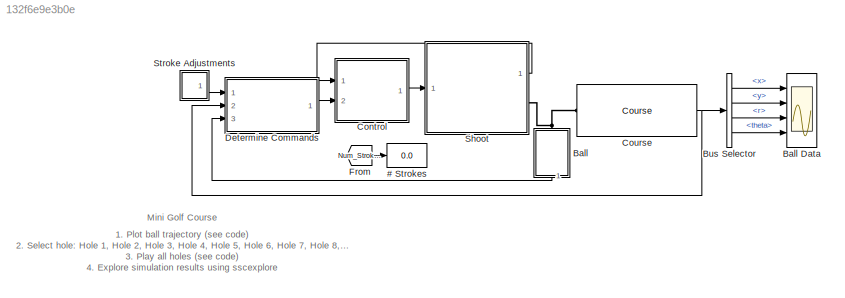
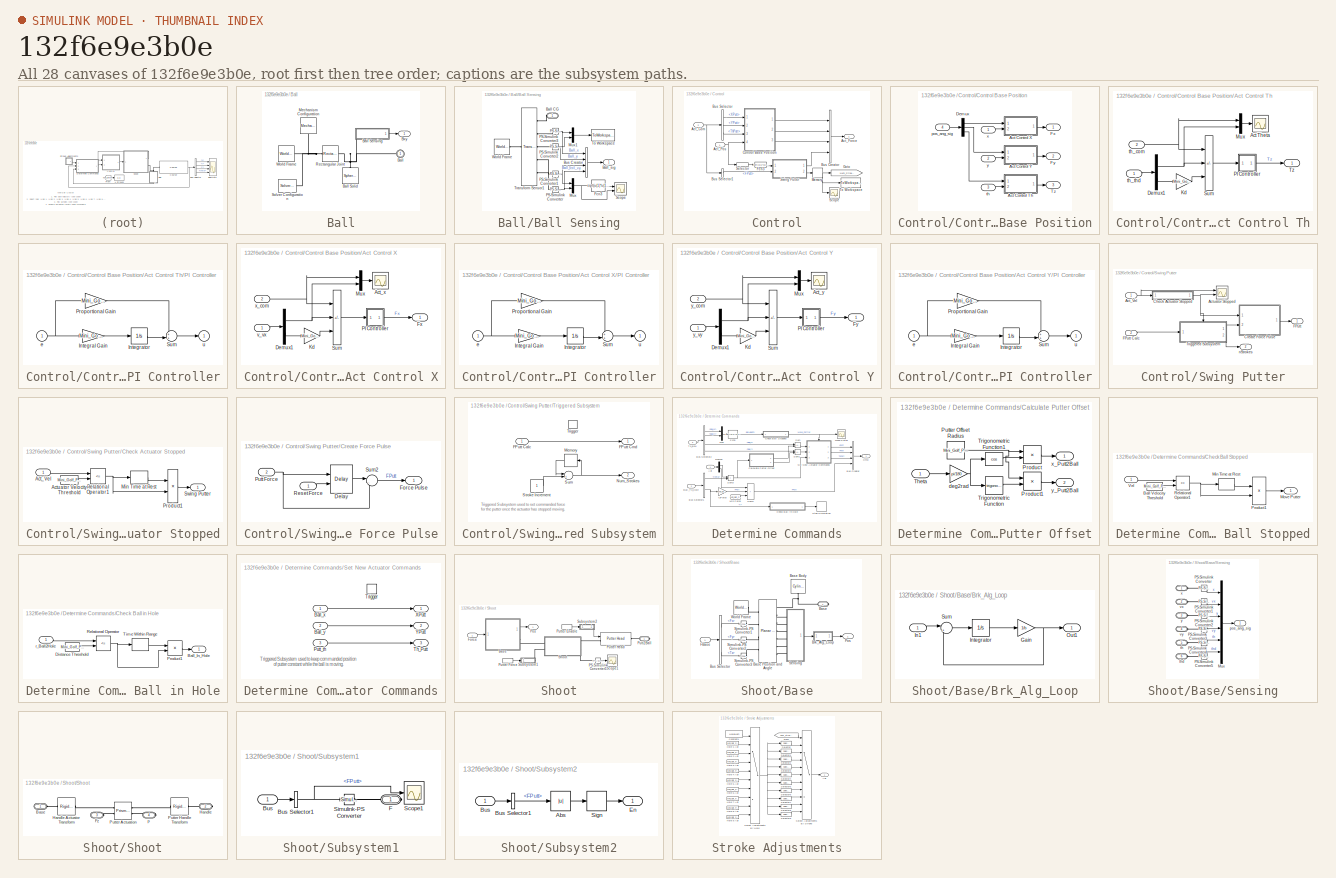
[diagram: thumbnail index - all 28 canvases of the model, root first then tree order]
MODEL slx_132f6e9e3b0e
KIND model
CONFIG AbsTol = 1e-5
CONFIG EnableMultiTasking = on
CONFIG FixedStep = auto
CONFIG InitFcn = %% DO NOT CHANGE -- START %%\n\n% GET HOLE NUMBER \nHoleChoice = get_param([bdroot '/Course'],'ActiveVariant');\nHoleChoice = strrep(HoleChoice,' ','_');\nUndSc_ind = findstr(HoleChoice,'_');\nHoleNum = str2num(HoleChoice(UndSc_ind+1:end));\n\n% SET BALL INITIAL POSITION \nball_init_x = eval(['Mini_Golf_Param.' HoleChoice '.Ball_Init_x']);\nball_init_y = eval(['Mini_Golf_Param.' HoleChoice '.Ball_Init_y']);...<+29ch>
CONFIG MaxStep = 1e-2
CONFIG MinStep = auto
CONFIG PostLoadFcn = % TURN OFF ERROR EXTERNAL FORCE --> WORLD\nset_param(bdroot,'SimMechanicsRigidlyBoundBlock','none')\nset_param(bdroot,'IgnoredZcDiagnostic','none')
CONFIG RelTol = 1e-4
CONFIG SampleTimeConstraint = Unconstrained
CONFIG SolverName = ode15s
CONFIG StartFcn = tic;
CONFIG StartTime = 0.0
CONFIG StopFcn = Elapsed_Sim_Time = toc;\ndisp(['Elapsed Sim Time = ' num2str(Elapsed_Sim_Time)]);\nPlot_Hole_Ball_Trajectory
CONFIG StopTime = 100
BLOCK [Display] # Strokes
  Decimation = 1
  Ports = [1]
BLOCK [SubSystem] Ball
  NameLocation = left
  Ports = [0, 1, 0, 0, 0, 1]
  RequestExecContextInheritance = off
BLOCK [Scope] Ball Data
  Floating = off
  NumInputPorts = 4
  Ports = [4]
  ScopeSpecificationString = Simulink.scopes.TimeScopeBlockCfg('CurrentConfiguration', extmgr.ConfigurationSet(extmgr.Configuration('Core','General UI',true,'FigureColor',[0.501960784313725 0.501960784313725 0.501960784313725]),extmgr.Configuration('Core','Source UI',true),extmgr.Configuration('Sources','WiredSimulink',true,'DataLoggingSaveFormat','StructureWithTime','DataLoggingDecimation','1','DataLoggingDecimateData',true)...<+6064ch>
BLOCK [PMIOPort] Ball/Ball
  NameLocation = top
  Side = Left
BLOCK [SubSystem] Ball/Ball Sensing
  NameLocation = top
  Ports = [0, 1, 0, 0, 0, 1]
  RequestExecContextInheritance = off
BLOCK [PMIOPort] Ball/Ball Sensing/Ball CG
  Side = Left
BLOCK [Outport] Ball/Ball Sensing/Ball_sig
  VectorParamsAs1DForOutWhenUnconnected = off
BLOCK [BusCreator] Ball/Ball Sensing/Bus Creator
  DisplayOption = bar
  InheritFromInputs = on
  Inputs = 4
  Ports = [4, 1]
BLOCK [Fcn] Ball/Ball Sensing/Fcn3
  Expr = sqrt(u(1)*u(1)+u(2)*u(2))
BLOCK [Mux] Ball/Ball Sensing/Mux
  DisplayOption = bar
  Inputs = 2
  Ports = [2, 1]
BLOCK [Mux] Ball/Ball Sensing/Mux1
  DisplayOption = bar
  Inputs = 2
  Ports = [2, 1]
BLOCK [Reference] Ball/Ball Sensing/PS-Simulink Converter  REF=nesl_utility/PS-Simulink
Converter
  Ports = [0, 1, 0, 0, 0, 1]
  SourceBlock = nesl_utility/PS-Simulink\nConverter
  SourceProductBaseCode = PW,SS
  SourceType = PS-Simulink\nConverter
BLOCK [Reference] Ball/Ball Sensing/PS-Simulink Converter1  REF=nesl_utility/PS-Simulink
Converter
  Ports = [0, 1, 0, 0, 0, 1]
  SourceBlock = nesl_utility/PS-Simulink\nConverter
  SourceProductBaseCode = PW,SS
  SourceType = PS-Simulink\nConverter
BLOCK [Reference] Ball/Ball Sensing/PS-Simulink Converter2  REF=nesl_utility/PS-Simulink
Converter
  Ports = [0, 1, 0, 0, 0, 1]
  SourceBlock = nesl_utility/PS-Simulink\nConverter
  SourceProductBaseCode = PW,SS
  SourceType = PS-Simulink\nConverter
BLOCK [Reference] Ball/Ball Sensing/PS-Simulink Converter3  REF=nesl_utility/PS-Simulink
Converter
  Ports = [0, 1, 0, 0, 0, 1]
  SourceBlock = nesl_utility/PS-Simulink\nConverter
  SourceProductBaseCode = PW,SS
  SourceType = PS-Simulink\nConverter
BLOCK [Scope] Ball/Ball Sensing/Scope
  Floating = off
  NumInputPorts = 2
  Ports = [2]
  ScopeSpecificationString = Simulink.scopes.TimeScopeBlockCfg('CurrentConfiguration', extmgr.ConfigurationSet(extmgr.Configuration('Core','General UI',true),extmgr.Configuration('Core','Source UI',true),extmgr.Configuration('Sources','WiredSimulink',true,'DataLoggingVariableName','ScopeData8','DataLoggingSaveFormat','StructureWithTime','DataLoggingDecimation','1','DataLoggingDecimateData',true),extmgr.Configuration('Visuals'...<+2322ch>
BLOCK [ToWorkspace] Ball/Ball Sensing/To Workspace
  MaxDataPoints = inf
  Ports = [1]
  SampleTime = -1
  SaveFormat = Structure
  VariableName = Ball_xy
BLOCK [Reference] Ball/Ball Sensing/Transform Sensor1  REF=sm_lib/Frames and
Transforms/Transform
Sensor
  Ports = [0, 0, 0, 0, 0, 1, 5]
  SourceBlock = sm_lib/Frames and\nTransforms/Transform\nSensor
  SourceProductBaseCode = MS
  SourceType = Transform\nSensor
BLOCK [Reference] Ball/Ball Sensing/World Frame  REF=sm_lib/Frames and
Transforms/World Frame
  Ports = [0, 0, 0, 0, 0, 0, 1]
  SourceBlock = sm_lib/Frames and\nTransforms/World Frame
  SourceProductBaseCode = MS
  SourceType = World Frame
BLOCK [Reference] Ball/Ball Solid  REF=sm_lib/Body Elements/Spherical Solid
  NameLocation = right
  Ports = [0, 0, 0, 0, 0, 0, 1]
  SourceBlock = sm_lib/Body Elements/Spherical Solid
  SourceProductBaseCode = MS
  SourceType = Spherical Solid
BLOCK [Outport] Ball/Bxy
  VectorParamsAs1DForOutWhenUnconnected = off
BLOCK [Reference] Ball/Mechanism Configuration  REF=sm_lib/Utilities/Mechanism
Configuration
  NameLocation = right
  Ports = [0, 0, 0, 0, 0, 0, 1]
  SourceBlock = sm_lib/Utilities/Mechanism\nConfiguration
  SourceProductBaseCode = MS
  SourceType = Mechanism\nConfiguration
BLOCK [Reference] Ball/Rectangular Joint  REF=sm_lib/Joints/Rectangular
Joint
  Ports = [0, 0, 0, 0, 0, 1, 1]
  SourceBlock = sm_lib/Joints/Rectangular\nJoint
  SourceProductBaseCode = MS
  SourceType = Rectangular\nJoint
BLOCK [Reference] Ball/Solver Configuration  REF=nesl_utility/Solver
Configuration
  Ports = [0, 0, 0, 0, 0, 0, 1]
  SourceBlock = nesl_utility/Solver\nConfiguration
  SourceProductBaseCode = PW,SS
  SourceType = Solver\nConfiguration
BLOCK [Reference] Ball/World Frame  REF=sm_lib/Frames and
Transforms/World Frame
  Ports = [0, 0, 0, 0, 0, 0, 1]
  SourceBlock = sm_lib/Frames and\nTransforms/World Frame
  SourceProductBaseCode = MS
  SourceType = World Frame
BLOCK [BusSelector] Bus Selector
  OutputSignals = x,y,r,theta
  Ports = [1, 4]
BLOCK [SubSystem] Control
  Ports = [2, 1]
  RequestExecContextInheritance = off
BLOCK [Inport] Control/Act_Com
  Port = 2
BLOCK [Outport] Control/Act_Force
  VectorParamsAs1DForOutWhenUnconnected = off
BLOCK [Inport] Control/Act_Pos
BLOCK [BusCreator] Control/Bus Creator
  DisplayOption = bar
  InheritFromInputs = on
  Inputs = 4
  Ports = [4, 1]
BLOCK [BusSelector] Control/Bus Selector
  OutputSignals = XPutt,YPutt,ThPutt
  Ports = [1, 3]
BLOCK [BusSelector] Control/Bus Selector1
  OutputSignals = FPutt
  Ports = [1, 1]
BLOCK [SubSystem] Control/Control Base Position
  Ports = [4, 3]
  RequestExecContextInheritance = off
BLOCK [SubSystem] Control/Control Base Position/Act Control Th
  Ports = [2, 1]
  RequestExecContextInheritance = off
BLOCK [Scope] Control/Control Base Position/Act Control Th/Act Theta
  Floating = off
  NumInputPorts = 1
  Ports = [1]
  ScopeSpecificationString = Simulink.scopes.TimeScopeBlockCfg('CurrentConfiguration', extmgr.ConfigurationSet(extmgr.Configuration('Core','General UI',true),extmgr.Configuration('Core','Source UI',true),extmgr.Configuration('Sources','WiredSimulink',true,'DataLoggingVariableName','ScopeData1','DataLoggingSaveFormat','StructureWithTime','DataLoggingDecimation','1','DataLoggingDecimateData',true),extmgr.Configuration('Visuals'...<+1619ch>
BLOCK [Demux] Control/Control Base Position/Act Control Th/Demux1
  Outputs = 2
  Ports = [1, 2]
BLOCK [Gain] Control/Control Base Position/Act Control Th/Kd
  Gain = Mini_Golf_Param.Actuator.Kd_th
BLOCK [Mux] Control/Control Base Position/Act Control Th/Mux
  DisplayOption = bar
  Inputs = 2
  Ports = [2, 1]
BLOCK [SubSystem] Control/Control Base Position/Act Control Th/PI Controller
  Ports = [1, 1]
  RequestExecContextInheritance = off
BLOCK [Gain] Control/Control Base Position/Act Control Th/PI Controller/Integral Gain
  Gain = Mini_Golf_Param.Actuator.Ki_th
  OutDataTypeStr = Inherit: Same as input
  ParamDataTypeStr = Inherit: Same as input
  SaturateOnIntegerOverflow = on
BLOCK [Integrator] Control/Control Base Position/Act Control Th/PI Controller/Integrator
  Ports = [1, 1]
BLOCK [Gain] Control/Control Base Position/Act Control Th/PI Controller/Proportional Gain
  Gain = Mini_Golf_Param.Actuator.Kp_th
  OutDataTypeStr = Inherit: Same as input
  ParamDataTypeStr = Inherit: Same as input
  SaturateOnIntegerOverflow = on
BLOCK [Sum] Control/Control Base Position/Act Control Th/PI Controller/Sum
  InputSameDT = on
  Inputs = ++|
  OutDataTypeStr = Inherit: Same as first input
  Ports = [2, 1]
  SaturateOnIntegerOverflow = on
BLOCK [Inport] Control/Control Base Position/Act Control Th/PI Controller/e
BLOCK [Outport] Control/Control Base Position/Act Control Th/PI Controller/u
  InitialOutput = 0
  VectorParamsAs1DForOutWhenUnconnected = off
BLOCK [Sum] Control/Control Base Position/Act Control Th/Sum
  IconShape = rectangular
  Inputs = +--
  Ports = [3, 1]
BLOCK [Outport] Control/Control Base Position/Act Control Th/Tz
  VectorParamsAs1DForOutWhenUnconnected = off
BLOCK [Inport] Control/Control Base Position/Act Control Th/th_com
  Port = 2
BLOCK [Inport] Control/Control Base Position/Act Control Th/th_thd
BLOCK [SubSystem] Control/Control Base Position/Act Control X
  Ports = [2, 1]
  RequestExecContextInheritance = off
BLOCK [Scope] Control/Control Base Position/Act Control X/Act_x
  Floating = off
  NumInputPorts = 1
  Ports = [1]
  ScopeSpecificationString = Simulink.scopes.TimeScopeBlockCfg('CurrentConfiguration', extmgr.ConfigurationSet(extmgr.Configuration('Core','General UI',true),extmgr.Configuration('Core','Source UI',true),extmgr.Configuration('Sources','WiredSimulink',true,'DataLoggingVariableName','ScopeData1','DataLoggingSaveFormat','StructureWithTime','DataLoggingDecimation','1','DataLoggingDecimateData',true),extmgr.Configuration('Visuals'...<+1658ch>
BLOCK [Demux] Control/Control Base Position/Act Control X/Demux1
  Outputs = 2
  Ports = [1, 2]
BLOCK [Outport] Control/Control Base Position/Act Control X/Fx
  VectorParamsAs1DForOutWhenUnconnected = off
BLOCK [Gain] Control/Control Base Position/Act Control X/Kd
  Gain = Mini_Golf_Param.Actuator.Kd_x
BLOCK [Mux] Control/Control Base Position/Act Control X/Mux
  DisplayOption = bar
  Inputs = 2
  Ports = [2, 1]
BLOCK [SubSystem] Control/Control Base Position/Act Control X/PI Controller
  Ports = [1, 1]
  RequestExecContextInheritance = off
BLOCK [Gain] Control/Control Base Position/Act Control X/PI Controller/Integral Gain
  Gain = Mini_Golf_Param.Actuator.Ki_x
  OutDataTypeStr = Inherit: Same as input
  ParamDataTypeStr = Inherit: Same as input
  SaturateOnIntegerOverflow = on
BLOCK [Integrator] Control/Control Base Position/Act Control X/PI Controller/Integrator
  Ports = [1, 1]
BLOCK [Gain] Control/Control Base Position/Act Control X/PI Controller/Proportional Gain
  Gain = Mini_Golf_Param.Actuator.Kp_x
  OutDataTypeStr = Inherit: Same as input
  ParamDataTypeStr = Inherit: Same as input
  SaturateOnIntegerOverflow = on
BLOCK [Sum] Control/Control Base Position/Act Control X/PI Controller/Sum
  InputSameDT = on
  Inputs = ++|
  OutDataTypeStr = Inherit: Same as first input
  Ports = [2, 1]
  SaturateOnIntegerOverflow = on
BLOCK [Inport] Control/Control Base Position/Act Control X/PI Controller/e
BLOCK [Outport] Control/Control Base Position/Act Control X/PI Controller/u
  InitialOutput = 0
  VectorParamsAs1DForOutWhenUnconnected = off
BLOCK [Sum] Control/Control Base Position/Act Control X/Sum
  IconShape = rectangular
  Inputs = +--
  Ports = [3, 1]
BLOCK [Inport] Control/Control Base Position/Act Control X/v_vx
BLOCK [Inport] Control/Control Base Position/Act Control X/x_com
  Port = 2
BLOCK [SubSystem] Control/Control Base Position/Act Control Y
  Ports = [2, 1]
  RequestExecContextInheritance = off
BLOCK [Scope] Control/Control Base Position/Act Control Y/Act_y
  Floating = off
  NumInputPorts = 1
  Ports = [1]
  ScopeSpecificationString = Simulink.scopes.TimeScopeBlockCfg('CurrentConfiguration', extmgr.ConfigurationSet(extmgr.Configuration('Core','General UI',true),extmgr.Configuration('Core','Source UI',true),extmgr.Configuration('Sources','WiredSimulink',true,'DataLoggingVariableName','ScopeData1','DataLoggingSaveFormat','StructureWithTime','DataLoggingDecimation','1','DataLoggingDecimateData',true),extmgr.Configuration('Visuals'...<+1662ch>
BLOCK [Demux] Control/Control Base Position/Act Control Y/Demux1
  Outputs = 2
  Ports = [1, 2]
BLOCK [Outport] Control/Control Base Position/Act Control Y/Fy
  VectorParamsAs1DForOutWhenUnconnected = off
BLOCK [Gain] Control/Control Base Position/Act Control Y/Kd
  Gain = Mini_Golf_Param.Actuator.Kd_y
BLOCK [Mux] Control/Control Base Position/Act Control Y/Mux
  DisplayOption = bar
  Inputs = 2
  Ports = [2, 1]
BLOCK [SubSystem] Control/Control Base Position/Act Control Y/PI Controller
  Ports = [1, 1]
  RequestExecContextInheritance = off
BLOCK [Gain] Control/Control Base Position/Act Control Y/PI Controller/Integral Gain
  Gain = Mini_Golf_Param.Actuator.Ki_y
  OutDataTypeStr = Inherit: Same as input
  ParamDataTypeStr = Inherit: Same as input
  SaturateOnIntegerOverflow = on
BLOCK [Integrator] Control/Control Base Position/Act Control Y/PI Controller/Integrator
  Ports = [1, 1]
BLOCK [Gain] Control/Control Base Position/Act Control Y/PI Controller/Proportional Gain
  Gain = Mini_Golf_Param.Actuator.Kp_y
  OutDataTypeStr = Inherit: Same as input
  ParamDataTypeStr = Inherit: Same as input
  SaturateOnIntegerOverflow = on
BLOCK [Sum] Control/Control Base Position/Act Control Y/PI Controller/Sum
  InputSameDT = on
  Inputs = ++|
  OutDataTypeStr = Inherit: Same as first input
  Ports = [2, 1]
  SaturateOnIntegerOverflow = on
BLOCK [Inport] Control/Control Base Position/Act Control Y/PI Controller/e
BLOCK [Outport] Control/Control Base Position/Act Control Y/PI Controller/u
  InitialOutput = 0
  VectorParamsAs1DForOutWhenUnconnected = off
BLOCK [Sum] Control/Control Base Position/Act Control Y/Sum
  IconShape = rectangular
  Inputs = +--
  Ports = [3, 1]
BLOCK [Inport] Control/Control Base Position/Act Control Y/y_com
  Port = 2
BLOCK [Inport] Control/Control Base Position/Act Control Y/y_vy
BLOCK [Demux] Control/Control Base Position/Demux
  Outputs = 3
  Ports = [1, 3]
BLOCK [Outport] Control/Control Base Position/Fx
  VectorParamsAs1DForOutWhenUnconnected = off
BLOCK [Outport] Control/Control Base Position/Fy
  Port = 2
  VectorParamsAs1DForOutWhenUnconnected = off
BLOCK [Outport] Control/Control Base Position/Tz
  Port = 3
  VectorParamsAs1DForOutWhenUnconnected = off
BLOCK [Inport] Control/Control Base Position/pos_ang_sig
  Port = 4
BLOCK [Inport] Control/Control Base Position/th
  Port = 3
BLOCK [Inport] Control/Control Base Position/x
BLOCK [Inport] Control/Control Base Position/y
  Port = 2
BLOCK [Fcn] Control/Fcn3
  Expr = sqrt(u(1)*u(1)+u(2)*u(2))
BLOCK [Goto] Control/Goto
  GotoTag = Num_Strokes
  TagVisibility = global
BLOCK [Memory] Control/Memory
  InheritSampleTime = on
BLOCK [Scope] Control/Scope
  Floating = off
  NumInputPorts = 1
  Ports = [1]
  ScopeSpecificationString = Simulink.scopes.TimeScopeBlockCfg('CurrentConfiguration', extmgr.ConfigurationSet(extmgr.Configuration('Core','General UI',true),extmgr.Configuration('Core','Source UI',true),extmgr.Configuration('Sources','WiredSimulink',true,'DataLoggingVariableName','ScopeData2','DataLoggingSaveFormat','StructureWithTime','DataLoggingDecimation','1','DataLoggingDecimateData',true),extmgr.Configuration('Visuals'...<+896ch>
BLOCK [Selector] Control/Selector
  IndexOptions = Index vector (dialog)
  Indices = [2 4]
  InputPortWidth = 6
  OutputSizes = 1
  Ports = [1, 1]
BLOCK [SubSystem] Control/Swing Putter
  Ports = [2, 2]
  RequestExecContextInheritance = off
BLOCK [Inport] Control/Swing Putter/Act_Vel
BLOCK [Scope] Control/Swing Putter/Actuator Stopped
  Floating = off
  NumInputPorts = 2
  Ports = [2]
  ScopeSpecificationString = Simulink.scopes.TimeScopeBlockCfg('CurrentConfiguration', extmgr.ConfigurationSet(extmgr.Configuration('Core','General UI',true),extmgr.Configuration('Core','Source UI',true),extmgr.Configuration('Sources','WiredSimulink',true,'DataLoggingVariableName','ScopeData5','DataLoggingSaveFormat','StructureWithTime','DataLoggingDecimation','1','DataLoggingDecimateData',true),extmgr.Configuration('Visuals'...<+2322ch>
BLOCK [SubSystem] Control/Swing Putter/Check Actuator Stopped
  Ports = [1, 1]
  RequestExecContextInheritance = off
BLOCK [Inport] Control/Swing Putter/Check Actuator Stopped/Act_Vel
BLOCK [Constant] Control/Swing Putter/Check Actuator Stopped/Actuator Velocity Threshold
  Value = Mini_Golf_Param.Logic.Act_Stopped_Vel_Thresh
BLOCK [Delay] Control/Swing Putter/Check Actuator Stopped/Min Time at Rest
  DelayLength = Mini_Golf_Param.Logic.Act_Stopped_Samples
  InputPortMap = u0
  Ports = [1, 1]
  SampleTime = Mini_Golf_Param.Logic.Act_Stopped_Sample_Time
  UserDataPersistent = on
BLOCK [Product] Control/Swing Putter/Check Actuator Stopped/Product1
  OutDataTypeStr = double
  Ports = [2, 1]
  RndMeth = Zero
BLOCK [RelationalOperator] Control/Swing Putter/Check Actuator Stopped/Relational Operator1
  InputSameDT = off
  Operator = <=
  OutDataTypeStr = boolean
  Ports = [2, 1]
BLOCK [Outport] Control/Swing Putter/Check Actuator Stopped/Swing Putter
  VectorParamsAs1DForOutWhenUnconnected = off
BLOCK [SubSystem] Control/Swing Putter/Create Force Pulse
  Ports = [2, 1]
  RequestExecContextInheritance = off
BLOCK [Delay] Control/Swing Putter/Create Force Pulse/Delay
  DelayLength = Mini_Golf_Param.Actuator.Force_Samples
  ExternalReset = Rising
  InputPortMap = u0,r5
  Ports = [2, 1]
  SampleTime = Mini_Golf_Param.Actuator.Force_Sample_Time
  UserDataPersistent = on
BLOCK [Outport] Control/Swing Putter/Create Force Pulse/Force Pulse
  VectorParamsAs1DForOutWhenUnconnected = off
BLOCK [Inport] Control/Swing Putter/Create Force Pulse/Putt Force
  Port = 2
BLOCK [Inport] Control/Swing Putter/Create Force Pulse/Reset Force
BLOCK [Sum] Control/Swing Putter/Create Force Pulse/Sum2
  InputSameDT = on
  Inputs = |-+
  OutDataTypeStr = Inherit: Same as first input
  Ports = [2, 1]
  SaturateOnIntegerOverflow = on
BLOCK [Outport] Control/Swing Putter/FPutt
  VectorParamsAs1DForOutWhenUnconnected = off
BLOCK [Inport] Control/Swing Putter/FPutt Calc
  Port = 2
BLOCK [SubSystem] Control/Swing Putter/Triggered Subsystem
  Ports = [1, 2, 0, 1]
  RequestExecContextInheritance = off
  TreatAsAtomicUnit = on
BLOCK [Inport] Control/Swing Putter/Triggered Subsystem/FPutt Calc
BLOCK [Outport] Control/Swing Putter/Triggered Subsystem/FPutt Cmd
  VectorParamsAs1DForOutWhenUnconnected = off
BLOCK [Memory] Control/Swing Putter/Triggered Subsystem/Memory
  InheritSampleTime = on
  NameLocation = top
BLOCK [Outport] Control/Swing Putter/Triggered Subsystem/Num_Strokes
  Port = 2
  VectorParamsAs1DForOutWhenUnconnected = off
BLOCK [Constant] Control/Swing Putter/Triggered Subsystem/Stroke Increment
BLOCK [Sum] Control/Swing Putter/Triggered Subsystem/Sum
  Inputs = |++
  Ports = [2, 1]
BLOCK [TriggerPort] Control/Swing Putter/Triggered Subsystem/Trigger
  Ports = []
  StatesWhenEnabling = held
  VariantControl = Variant
BLOCK [Outport] Control/Swing Putter/nStrokes
  Port = 2
  VectorParamsAs1DForOutWhenUnconnected = off
BLOCK [ToWorkspace] Control/To Workspace
  MaxDataPoints = 1
  Ports = [1]
  SampleTime = -1
  VariableName = NumStrokes
BLOCK [Reference] Course  REF=Course_Holes_Lib/Course
  AttributesFormatString = %<BlockChoice>
  Ports = [0, 1, 0, 0, 0, 1]
  SourceBlock = Course_Holes_Lib/Course
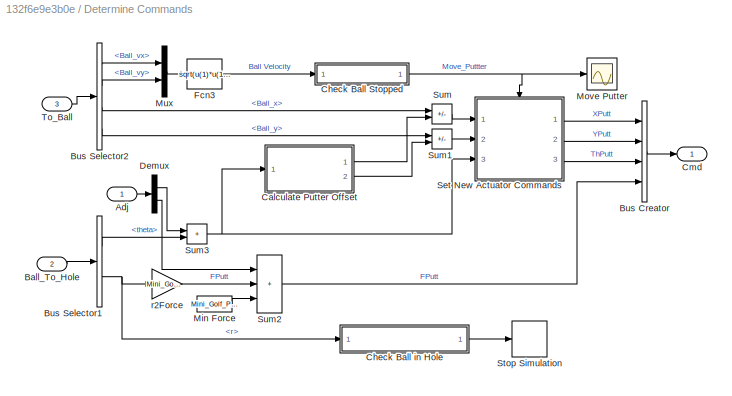
BLOCK [SubSystem] Determine Commands
  Ports = [3, 1]
  RequestExecContextInheritance = off
BLOCK [Inport] Determine Commands/Adj
BLOCK [Inport] Determine Commands/Ball_To_Hole
  Port = 2
BLOCK [BusCreator] Determine Commands/Bus Creator
  DisplayOption = bar
  InheritFromInputs = on
  Inputs = 4
  Ports = [4, 1]
BLOCK [BusSelector] Determine Commands/Bus Selector1
  OutputSignals = theta,r
  Ports = [1, 2]
BLOCK [BusSelector] Determine Commands/Bus Selector2
  OutputSignals = Ball_vx,Ball_vy,Ball_x,Ball_y
  Ports = [1, 4]
BLOCK [SubSystem] Determine Commands/Calculate Putter Offset
  Ports = [1, 2]
  RequestExecContextInheritance = off
BLOCK [Product] Determine Commands/Calculate Putter Offset/Product
  Ports = [2, 1]
  RndMeth = Zero
BLOCK [Product] Determine Commands/Calculate Putter Offset/Product1
  Ports = [2, 1]
  RndMeth = Zero
BLOCK [Constant] Determine Commands/Calculate Putter Offset/Putter Offset Radius
  NameLocation = top
  Value = Mini_Golf_Param.Actuator.Dist_From_Ball
BLOCK [Inport] Determine Commands/Calculate Putter Offset/Theta
BLOCK [Trigonometry] Determine Commands/Calculate Putter Offset/Trigonometric Function
  Ports = [1, 1]
BLOCK [Trigonometry] Determine Commands/Calculate Putter Offset/Trigonometric Function1
  Operator = cos
  Ports = [1, 1]
BLOCK [Gain] Determine Commands/Calculate Putter Offset/deg2rad
  Gain = pi/180
BLOCK [Outport] Determine Commands/Calculate Putter Offset/x_Putt2Ball
  VectorParamsAs1DForOutWhenUnconnected = off
BLOCK [Outport] Determine Commands/Calculate Putter Offset/y_Putt2Ball
  Port = 2
  VectorParamsAs1DForOutWhenUnconnected = off
BLOCK [SubSystem] Determine Commands/Check Ball Stopped
  Ports = [1, 1]
  RequestExecContextInheritance = off
BLOCK [Constant] Determine Commands/Check Ball Stopped/Ball Velocity Threshold
  Value = Mini_Golf_Param.Logic.Ball_Stopped_Vel_Thresh
BLOCK [Delay] Determine Commands/Check Ball Stopped/Min Time at Rest 
  DelayLength = Mini_Golf_Param.Logic.Ball_Stopped_Samples
  InputPortMap = u0
  Ports = [1, 1]
  SampleTime = Mini_Golf_Param.Logic.Ball_Stopped_Sample_Time
  UserDataPersistent = on
BLOCK [Outport] Determine Commands/Check Ball Stopped/Move Putter
  VectorParamsAs1DForOutWhenUnconnected = off
BLOCK [Product] Determine Commands/Check Ball Stopped/Product1
  OutDataTypeStr = double
  Ports = [2, 1]
  RndMeth = Zero
BLOCK [RelationalOperator] Determine Commands/Check Ball Stopped/Relational Operator1
  InputSameDT = off
  Operator = <=
  OutDataTypeStr = boolean
  Ports = [2, 1]
BLOCK [Inport] Determine Commands/Check Ball Stopped/Vel
BLOCK [SubSystem] Determine Commands/Check Ball in Hole
  Ports = [1, 1]
  RequestExecContextInheritance = off
BLOCK [Outport] Determine Commands/Check Ball in Hole/Ball_In_Hole
  VectorParamsAs1DForOutWhenUnconnected = off
BLOCK [Constant] Determine Commands/Check Ball in Hole/Distance Threshold
  Value = Mini_Golf_Param.Ball.Radius
BLOCK [Product] Determine Commands/Check Ball in Hole/Product1
  OutDataTypeStr = double
  Ports = [2, 1]
  RndMeth = Zero
BLOCK [RelationalOperator] Determine Commands/Check Ball in Hole/Relational Operator
  InputSameDT = off
  Operator = <=
  OutDataTypeStr = boolean
  Ports = [2, 1]
BLOCK [Delay] Determine Commands/Check Ball in Hole/Time Within Range
  DelayLength = Mini_Golf_Param.Logic.Ball_In_Hole_Samples
  InputPortMap = u0
  Ports = [1, 1]
  SampleTime = Mini_Golf_Param.Logic.Ball_In_Hole_Sample_Time
  UserDataPersistent = on
BLOCK [Inport] Determine Commands/Check Ball in Hole/r_Ball2Hole
BLOCK [Outport] Determine Commands/Cmd
  VectorParamsAs1DForOutWhenUnconnected = off
BLOCK [Demux] Determine Commands/Demux
  Outputs = 2
  Ports = [1, 2]
BLOCK [Fcn] Determine Commands/Fcn3
  Expr = sqrt(u(1)*u(1)+u(2)*u(2))
BLOCK [Constant] Determine Commands/Min Force
  Value = Mini_Golf_Param.Actuator.Min_Force
BLOCK [Scope] Determine Commands/Move Putter
  Floating = off
  NumInputPorts = 1
  Ports = [1]
  ScopeSpecificationString = Simulink.scopes.TimeScopeBlockCfg('CurrentConfiguration', extmgr.ConfigurationSet(extmgr.Configuration('Core','General UI',true),extmgr.Configuration('Core','Source UI',true),extmgr.Configuration('Sources','WiredSimulink',true,'DataLoggingVariableName','ScopeData3','DataLoggingSaveFormat','StructureWithTime','DataLoggingLimitDataPoints',true,'DataLoggingDecimation','1','DataLoggingDecimateData',tr...<+930ch>
BLOCK [Mux] Determine Commands/Mux
  DisplayOption = bar
  Inputs = 2
  Ports = [2, 1]
BLOCK [SubSystem] Determine Commands/Set New Actuator Commands
  Ports = [3, 3, 0, 1]
  RequestExecContextInheritance = off
  TreatAsAtomicUnit = on
BLOCK [Inport] Determine Commands/Set New Actuator Commands/Ball_x
BLOCK [Inport] Determine Commands/Set New Actuator Commands/Ball_y
  Port = 2
BLOCK [Inport] Determine Commands/Set New Actuator Commands/Putt_th
  Port = 3
BLOCK [Outport] Determine Commands/Set New Actuator Commands/Th_Putt
  Port = 3
  VectorParamsAs1DForOutWhenUnconnected = off
BLOCK [TriggerPort] Determine Commands/Set New Actuator Commands/Trigger
  Ports = []
  StatesWhenEnabling = held
  VariantControl = Variant
BLOCK [Outport] Determine Commands/Set New Actuator Commands/XPutt
  VectorParamsAs1DForOutWhenUnconnected = off
BLOCK [Outport] Determine Commands/Set New Actuator Commands/YPutt
  Port = 2
  VectorParamsAs1DForOutWhenUnconnected = off
BLOCK [Stop] Determine Commands/Stop Simulation
BLOCK [Sum] Determine Commands/Sum
  IconShape = rectangular
  Inputs = +-
  Ports = [2, 1]
BLOCK [Sum] Determine Commands/Sum1
  IconShape = rectangular
  Inputs = +-
  Ports = [2, 1]
BLOCK [Sum] Determine Commands/Sum2
  IconShape = rectangular
  Inputs = +++
  Ports = [3, 1]
BLOCK [Sum] Determine Commands/Sum3
  IconShape = rectangular
  Ports = [2, 1]
BLOCK [Inport] Determine Commands/To_Ball
  NameLocation = top
  Port = 3
BLOCK [Gain] Determine Commands/r2Force
  Gain = Mini_Golf_Param.Actuator.Dist_to_Force_Gain
BLOCK [From] From
  GotoTag = Num_Strokes
  TagVisibility = global
BLOCK [SubSystem] Shoot
  Ports = [1, 1, 0, 0, 0, 0, 1]
  RequestExecContextInheritance = off
BLOCK [SubSystem] Shoot/Base
  Ports = [1, 1, 0, 0, 0, 0, 1]
  RequestExecContextInheritance = off
BLOCK [PMIOPort] Shoot/Base/Base
  NameLocation = top
  Side = Right
BLOCK [Reference] Shoot/Base/Base Body  REF=sm_lib/Body Elements/Cylindrical Solid
  NameLocation = left
  Ports = [0, 0, 0, 0, 0, 0, 1]
  SourceBlock = sm_lib/Body Elements/Cylindrical Solid
  SourceProductBaseCode = MS
  SourceType = Cylindrical Solid
BLOCK [Reference] Shoot/Base/Base Position and Angle  REF=sm_lib/Joints/Planar Joint
  Ports = [0, 0, 0, 0, 0, 4, 7]
  SourceBlock = sm_lib/Joints/Planar Joint
  SourceProductBaseCode = MS
  SourceType = Planar Joint
BLOCK [SubSystem] Shoot/Base/Brk_Alg_Loop
  Ports = [1, 1]
  RequestExecContextInheritance = off
BLOCK [Gain] Shoot/Base/Brk_Alg_Loop/Gain
  Gain = 1/b
BLOCK [Inport] Shoot/Base/Brk_Alg_Loop/In1
BLOCK [Integrator] Shoot/Base/Brk_Alg_Loop/Integrator
  InitialCondition = x_initial
  Ports = [1, 1]
BLOCK [Outport] Shoot/Base/Brk_Alg_Loop/Out1
  VectorParamsAs1DForOutWhenUnconnected = off
BLOCK [Sum] Shoot/Base/Brk_Alg_Loop/Sum
  InputSameDT = on
  Inputs = |+-
  OutDataTypeStr = Inherit: Same as first input
  Ports = [2, 1]
  SaturateOnIntegerOverflow = on
BLOCK [BusSelector] Shoot/Base/Bus Selector
  OutputSignals = Fx,Fy,Tz
  Ports = [1, 3]
BLOCK [Inport] Shoot/Base/FBase
BLOCK [Outport] Shoot/Base/Pos
  VectorParamsAs1DForOutWhenUnconnected = off
BLOCK [SubSystem] Shoot/Base/Sensing
  Ports = [0, 1, 0, 0, 0, 6]
  RequestExecContextInheritance = off
BLOCK [Mux] Shoot/Base/Sensing/Mux
  DisplayOption = bar
  Inputs = 6
  Ports = [6, 1]
BLOCK [Reference] Shoot/Base/Sensing/PS-Simulink Converter  REF=nesl_utility/PS-Simulink
Converter
  Ports = [0, 1, 0, 0, 0, 1]
  SourceBlock = nesl_utility/PS-Simulink\nConverter
  SourceProductBaseCode = PW,SS
  SourceType = PS-Simulink\nConverter
BLOCK [Reference] Shoot/Base/Sensing/PS-Simulink Converter1  REF=nesl_utility/PS-Simulink
Converter
  Ports = [0, 1, 0, 0, 0, 1]
  SourceBlock = nesl_utility/PS-Simulink\nConverter
  SourceProductBaseCode = PW,SS
  SourceType = PS-Simulink\nConverter
BLOCK [Reference] Shoot/Base/Sensing/PS-Simulink Converter2  REF=nesl_utility/PS-Simulink
Converter
  Ports = [0, 1, 0, 0, 0, 1]
  SourceBlock = nesl_utility/PS-Simulink\nConverter
  SourceProductBaseCode = PW,SS
  SourceType = PS-Simulink\nConverter
BLOCK [Reference] Shoot/Base/Sensing/PS-Simulink Converter3  REF=nesl_utility/PS-Simulink
Converter
  Ports = [0, 1, 0, 0, 0, 1]
  SourceBlock = nesl_utility/PS-Simulink\nConverter
  SourceProductBaseCode = PW,SS
  SourceType = PS-Simulink\nConverter
BLOCK [Reference] Shoot/Base/Sensing/PS-Simulink Converter4  REF=nesl_utility/PS-Simulink
Converter
  Ports = [0, 1, 0, 0, 0, 1]
  SourceBlock = nesl_utility/PS-Simulink\nConverter
  SourceProductBaseCode = PW,SS
  SourceType = PS-Simulink\nConverter
BLOCK [Reference] Shoot/Base/Sensing/PS-Simulink Converter5  REF=nesl_utility/PS-Simulink
Converter
  Ports = [0, 1, 0, 0, 0, 1]
  SourceBlock = nesl_utility/PS-Simulink\nConverter
  SourceProductBaseCode = PW,SS
  SourceType = PS-Simulink\nConverter
BLOCK [Outport] Shoot/Base/Sensing/pos_ang_sig
  VectorParamsAs1DForOutWhenUnconnected = off
BLOCK [PMIOPort] Shoot/Base/Sensing/th
  Port = 5
  Side = Left
BLOCK [PMIOPort] Shoot/Base/Sensing/thd
  Port = 6
  Side = Left
BLOCK [PMIOPort] Shoot/Base/Sensing/vx
  Port = 2
  Side = Left
BLOCK [PMIOPort] Shoot/Base/Sensing/vy
  Port = 4
  Side = Left
BLOCK [PMIOPort] Shoot/Base/Sensing/x
  Side = Left
BLOCK [PMIOPort] Shoot/Base/Sensing/y
  Port = 3
  Side = Left
BLOCK [Reference] Shoot/Base/Simulink-PS Converter1  REF=nesl_utility/Simulink-PS
Converter
  Ports = [1, 0, 0, 0, 0, 0, 1]
  SourceBlock = nesl_utility/Simulink-PS\nConverter
  SourceProductBaseCode = PW,SS
  SourceType = Simulink-PS\nConverter
BLOCK [Reference] Shoot/Base/Simulink-PS Converter2  REF=nesl_utility/Simulink-PS
Converter
  Ports = [1, 0, 0, 0, 0, 0, 1]
  SourceBlock = nesl_utility/Simulink-PS\nConverter
  SourceProductBaseCode = PW,SS
  SourceType = Simulink-PS\nConverter
BLOCK [Reference] Shoot/Base/Simulink-PS Converter3  REF=nesl_utility/Simulink-PS
Converter
  Ports = [1, 0, 0, 0, 0, 0, 1]
  SourceBlock = nesl_utility/Simulink-PS\nConverter
  SourceProductBaseCode = PW,SS
  SourceType = Simulink-PS\nConverter
BLOCK [Reference] Shoot/Base/World Frame  REF=sm_lib/Frames and
Transforms/World Frame
  NameLocation = top
  Ports = [0, 0, 0, 0, 0, 0, 1]
  SourceBlock = sm_lib/Frames and\nTransforms/World Frame
  SourceProductBaseCode = MS
  SourceType = World Frame
BLOCK [Inport] Shoot/Force
BLOCK [Reference] Shoot/PS-Simulink Converter5  REF=nesl_utility/PS-Simulink
Converter
  Ports = [0, 1, 0, 0, 0, 1]
  SourceBlock = nesl_utility/PS-Simulink\nConverter
  SourceProductBaseCode = PW,SS
  SourceType = PS-Simulink\nConverter
BLOCK [Outport] Shoot/Pos
  VectorParamsAs1DForOutWhenUnconnected = off
BLOCK [PMIOPort] Shoot/Putt2Ball
  Side = Right
BLOCK [InportShadow] Shoot/Putter Enable
BLOCK [InportShadow] Shoot/Putter Force
BLOCK [Reference] Shoot/Putter Head  REF=Golf_Components_Lib/Putter Head
  Ports = [1, 0, 0, 0, 0, 1, 1]
  SourceBlock = Golf_Components_Lib/Putter Head
  SourceType = Wall with Round Ends, 2D Contact Forces
BLOCK [Scope] Shoot/Scope1
  Floating = off
  NumInputPorts = 1
  Ports = [1]
  ScopeSpecificationString = Simulink.scopes.TimeScopeBlockCfg('CurrentConfiguration', extmgr.ConfigurationSet(extmgr.Configuration('Core','General UI',true),extmgr.Configuration('Core','Source UI',true),extmgr.Configuration('Sources','WiredSimulink',true,'DataLoggingVariableName','ScopeData7','DataLoggingSaveFormat','StructureWithTime','DataLoggingDecimation','1','DataLoggingDecimateData',true),extmgr.Configuration('Visuals'...<+896ch>
BLOCK [SubSystem] Shoot/Shoot
  Ports = [0, 0, 0, 0, 0, 2, 2]
  RequestExecContextInheritance = off
BLOCK [PMIOPort] Shoot/Shoot/Base
  Side = Left
BLOCK [PMIOPort] Shoot/Shoot/Fz
  Port = 3
  Side = Left
BLOCK [PMIOPort] Shoot/Shoot/Handle
  Port = 2
  Side = Right
BLOCK [Reference] Shoot/Shoot/Handle Actuator Transform  REF=sm_lib/Frames and
Transforms/Rigid
Transform
  Ports = [0, 0, 0, 0, 0, 1, 1]
  SourceBlock = sm_lib/Frames and\nTransforms/Rigid\nTransform
  SourceProductBaseCode = MS
  SourceType = Rigid\nTransform
BLOCK [Reference] Shoot/Shoot/Putter Actuation  REF=sm_lib/Joints/Prismatic
Joint
  Ports = [0, 0, 0, 0, 0, 2, 2]
  SourceBlock = sm_lib/Joints/Prismatic\nJoint
  SourceProductBaseCode = MS
  SourceType = Prismatic\nJoint
BLOCK [Reference] Shoot/Shoot/Putter Handle Transform  REF=sm_lib/Frames and
Transforms/Rigid
Transform
  Ports = [0, 0, 0, 0, 0, 1, 1]
  SourceBlock = sm_lib/Frames and\nTransforms/Rigid\nTransform
  SourceProductBaseCode = MS
  SourceType = Rigid\nTransform
BLOCK [PMIOPort] Shoot/Shoot/p
  Port = 4
  Side = Right
BLOCK [SubSystem] Shoot/Subsystem1
  Ports = [1, 0, 0, 0, 0, 0, 1]
  RequestExecContextInheritance = off
BLOCK [Inport] Shoot/Subsystem1/Bus
BLOCK [BusSelector] Shoot/Subsystem1/Bus Selector1
  OutputSignals = FPutt
  Ports = [1, 1]
BLOCK [PMIOPort] Shoot/Subsystem1/F
  Side = Right
BLOCK [Scope] Shoot/Subsystem1/Scope1
  Floating = off
  NumInputPorts = 1
  Ports = [1]
  ScopeSpecificationString = Simulink.scopes.TimeScopeBlockCfg('CurrentConfiguration', extmgr.ConfigurationSet(extmgr.Configuration('Core','General UI',true),extmgr.Configuration('Core','Source UI',true),extmgr.Configuration('Sources','WiredSimulink',true,'DataLoggingVariableName','ScopeData11','DataLoggingSaveFormat','StructureWithTime','DataLoggingDecimation','1','DataLoggingDecimateData',true),extmgr.Configuration('Visuals...<+897ch>
BLOCK [Reference] Shoot/Subsystem1/Simulink-PS Converter  REF=nesl_utility/Simulink-PS
Converter
  Ports = [1, 0, 0, 0, 0, 0, 1]
  SourceBlock = nesl_utility/Simulink-PS\nConverter
  SourceProductBaseCode = PW,SS
  SourceType = Simulink-PS\nConverter
BLOCK [SubSystem] Shoot/Subsystem2
  Ports = [1, 1]
  RequestExecContextInheritance = off
BLOCK [Abs] Shoot/Subsystem2/Abs
  SaturateOnIntegerOverflow = off
BLOCK [Inport] Shoot/Subsystem2/Bus
BLOCK [BusSelector] Shoot/Subsystem2/Bus Selector1
  OutputSignals = FPutt
  Ports = [1, 1]
BLOCK [Outport] Shoot/Subsystem2/En
  NameLocation = top
  VectorParamsAs1DForOutWhenUnconnected = off
BLOCK [Signum] Shoot/Subsystem2/Sign
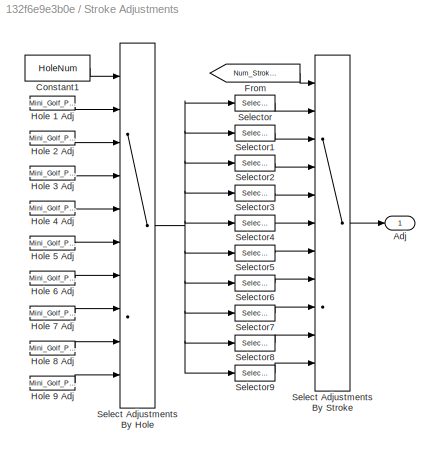
BLOCK [SubSystem] Stroke Adjustments
  NameLocation = top
  Ports = [0, 1]
  RequestExecContextInheritance = off
BLOCK [Outport] Stroke Adjustments/Adj
  VectorParamsAs1DForOutWhenUnconnected = off
BLOCK [Constant] Stroke Adjustments/Constant1
  Value = HoleNum
BLOCK [From] Stroke Adjustments/From
  GotoTag = Num_Strokes
  TagVisibility = global
BLOCK [Constant] Stroke Adjustments/Hole 1 Adj
  Value = Mini_Golf_Param.Hole_1.Open_Loop_Adjustments
BLOCK [Constant] Stroke Adjustments/Hole 2 Adj
  Value = Mini_Golf_Param.Hole_2.Open_Loop_Adjustments
BLOCK [Constant] Stroke Adjustments/Hole 3 Adj
  Value = Mini_Golf_Param.Hole_3.Open_Loop_Adjustments
BLOCK [Constant] Stroke Adjustments/Hole 4 Adj
  Value = Mini_Golf_Param.Hole_4.Open_Loop_Adjustments
BLOCK [Constant] Stroke Adjustments/Hole 5 Adj
  Value = Mini_Golf_Param.Hole_5.Open_Loop_Adjustments
BLOCK [Constant] Stroke Adjustments/Hole 6 Adj
  Value = Mini_Golf_Param.Hole_6.Open_Loop_Adjustments
BLOCK [Constant] Stroke Adjustments/Hole 7 Adj
  Value = Mini_Golf_Param.Hole_7.Open_Loop_Adjustments
BLOCK [Constant] Stroke Adjustments/Hole 8 Adj
  Value = Mini_Golf_Param.Hole_8.Open_Loop_Adjustments
BLOCK [Constant] Stroke Adjustments/Hole 9 Adj
  Value = Mini_Golf_Param.Hole_9.Open_Loop_Adjustments
BLOCK [MultiPortSwitch] Stroke Adjustments/Select Adjustments By Hole
  DiagnosticForDefault = None
  InputSameDT = off
  Inputs = 9
  Ports = [10, 1]
  SaturateOnIntegerOverflow = off
BLOCK [MultiPortSwitch] Stroke Adjustments/Select Adjustments By Stroke
  DataPortOrder = Zero-based contiguous
  DiagnosticForDefault = None
  InputSameDT = off
  Inputs = 10
  Ports = [11, 1]
  SaturateOnIntegerOverflow = off
  zeroidx = on
BLOCK [Selector] Stroke Adjustments/Selector
  IndexOptions = Index vector (dialog),Index vector (dialog)
  Indices = 1,1:2
  InputPortWidth = 3
  NumberOfDimensions = 2
  OutputSizes = 1,1
  Ports = [1, 1]
BLOCK [Selector] Stroke Adjustments/Selector1
  IndexOptions = Index vector (dialog),Index vector (dialog)
  Indices = 2,1:2
  InputPortWidth = 3
  NumberOfDimensions = 2
  OutputSizes = 1,1
  Ports = [1, 1]
BLOCK [Selector] Stroke Adjustments/Selector2
  IndexOptions = Index vector (dialog),Index vector (dialog)
  Indices = 3,1:2
  InputPortWidth = 3
  NumberOfDimensions = 2
  OutputSizes = 1,1
  Ports = [1, 1]
BLOCK [Selector] Stroke Adjustments/Selector3
  IndexOptions = Index vector (dialog),Index vector (dialog)
  Indices = 4,1:2
  InputPortWidth = 3
  NumberOfDimensions = 2
  OutputSizes = 1,1
  Ports = [1, 1]
BLOCK [Selector] Stroke Adjustments/Selector4
  IndexOptions = Index vector (dialog),Index vector (dialog)
  Indices = 5,1:2
  InputPortWidth = 3
  NumberOfDimensions = 2
  OutputSizes = 1,1
  Ports = [1, 1]
BLOCK [Selector] Stroke Adjustments/Selector5
  IndexOptions = Index vector (dialog),Index vector (dialog)
  Indices = 6,1:2
  InputPortWidth = 3
  NumberOfDimensions = 2
  OutputSizes = 1,1
  Ports = [1, 1]
BLOCK [Selector] Stroke Adjustments/Selector6
  IndexOptions = Index vector (dialog),Index vector (dialog)
  Indices = 7,1:2
  InputPortWidth = 3
  NumberOfDimensions = 2
  OutputSizes = 1,1
  Ports = [1, 1]
BLOCK [Selector] Stroke Adjustments/Selector7
  IndexOptions = Index vector (dialog),Index vector (dialog)
  Indices = 8,1:2
  InputPortWidth = 3
  NumberOfDimensions = 2
  OutputSizes = 1,1
  Ports = [1, 1]
BLOCK [Selector] Stroke Adjustments/Selector8
  IndexOptions = Index vector (dialog),Index vector (dialog)
  Indices = 9,1:2
  InputPortWidth = 3
  NumberOfDimensions = 2
  OutputSizes = 1,1
  Ports = [1, 1]
BLOCK [Selector] Stroke Adjustments/Selector9
  IndexOptions = Index vector (dialog),Index vector (dialog)
  Indices = 10,1:2
  InputPortWidth = 3
  NumberOfDimensions = 2
  OutputSizes = 1,1
  Ports = [1, 1]
ANNOTATION (root): 1. Plot ball trajectory ( see code ) 2. Select hole: Hole 1 , Hole 2 , Hole 3 , Hole 4 , Hole 5 , Hole 6 , Hole 7 , Hole 8 , Hole 9 3. Play all holes ( see code ) 4. Explore simulation results using sscexplore
ANNOTATION (root): Mini Golf Course
ANNOTATION Control/Swing Putter/Triggered Subsystem: Triggered Subsystem used to set commanded force for the putter once the actuator has stopped moving.
ANNOTATION Determine Commands/Set New Actuator Commands: Triggered Subsystem used to keep commanded position of putter constant while the ball is moving.
LINE Ball/Ball Sensing/Bus Creator:1 -> Ball/Ball Sensing/Ball_sig:1
LINE Ball/Ball Sensing/Fcn3:1 -> Ball/Ball Sensing/Scope:1
LINE Ball/Ball Sensing/Mux1:1 -> Ball/Ball Sensing/To Workspace:1
NET Ball/Ball Sensing/Mux:1 -> Ball/Ball Sensing/Fcn3:1, Ball/Ball Sensing/Scope:2
NET Ball/Ball Sensing/PS-Simulink Converter1:1 -> Ball/Ball Sensing/Bus Creator:3, Ball/Ball Sensing/Mux:1
NET Ball/Ball Sensing/PS-Simulink Converter2:1 -> Ball/Ball Sensing/Bus Creator:2, Ball/Ball Sensing/Mux1:2
NET Ball/Ball Sensing/PS-Simulink Converter3:1 -> Ball/Ball Sensing/Bus Creator:1, Ball/Ball Sensing/Mux1:1
NET Ball/Ball Sensing/PS-Simulink Converter:1 -> Ball/Ball Sensing/Bus Creator:4, Ball/Ball Sensing/Mux:2
LINE Ball/Ball Sensing:1 -> Ball/Bxy:1
LINE Ball:1 -> Determine Commands:3
LINE Bus Selector:1 -> Ball Data:1
LINE Bus Selector:2 -> Ball Data:2
LINE Bus Selector:3 -> Ball Data:3
LINE Bus Selector:4 -> Ball Data:4
NET Control/Act_Com:1 -> Control/Bus Selector1:1, Control/Bus Selector:1
NET Control/Act_Pos:1 -> Control/Control Base Position:4, Control/Selector:1
LINE Control/Bus Creator:1 -> Control/Act_Force:1
LINE Control/Bus Selector1:1 -> Control/Swing Putter:2
LINE Control/Bus Selector:1 -> Control/Control Base Position:1
LINE Control/Bus Selector:2 -> Control/Control Base Position:2
LINE Control/Bus Selector:3 -> Control/Control Base Position:3
NET Control/Control Base Position/Act Control Th/Demux1:1 -> Control/Control Base Position/Act Control Th/Mux:2, Control/Control Base Position/Act Control Th/Sum:2
LINE Control/Control Base Position/Act Control Th/Demux1:2 -> Control/Control Base Position/Act Control Th/Kd:1
LINE Control/Control Base Position/Act Control Th/Kd:1 -> Control/Control Base Position/Act Control Th/Sum:3
LINE Control/Control Base Position/Act Control Th/Mux:1 -> Control/Control Base Position/Act Control Th/Act Theta:1
LINE Control/Control Base Position/Act Control Th/PI Controller/Integral Gain:1 -> Control/Control Base Position/Act Control Th/PI Controller/Integrator:1
LINE Control/Control Base Position/Act Control Th/PI Controller/Integrator:1 -> Control/Control Base Position/Act Control Th/PI Controller/Sum:2
LINE Control/Control Base Position/Act Control Th/PI Controller/Proportional Gain:1 -> Control/Control Base Position/Act Control Th/PI Controller/Sum:1
LINE Control/Control Base Position/Act Control Th/PI Controller/Sum:1 -> Control/Control Base Position/Act Control Th/PI Controller/u:1
NET Control/Control Base Position/Act Control Th/PI Controller/e:1 -> Control/Control Base Position/Act Control Th/PI Controller/Integral Gain:1, Control/Control Base Position/Act Control Th/PI Controller/Proportional Gain:1
LINE Control/Control Base Position/Act Control Th/PI Controller:1 -> Control/Control Base Position/Act Control Th/Tz:1
LINE Control/Control Base Position/Act Control Th/Sum:1 -> Control/Control Base Position/Act Control Th/PI Controller:1
NET Control/Control Base Position/Act Control Th/th_com:1 -> Control/Control Base Position/Act Control Th/Mux:1, Control/Control Base Position/Act Control Th/Sum:1
LINE Control/Control Base Position/Act Control Th/th_thd:1 -> Control/Control Base Position/Act Control Th/Demux1:1
LINE Control/Control Base Position/Act Control Th:1 -> Control/Control Base Position/Tz:1
NET Control/Control Base Position/Act Control X/Demux1:1 -> Control/Control Base Position/Act Control X/Mux:2, Control/Control Base Position/Act Control X/Sum:2
LINE Control/Control Base Position/Act Control X/Demux1:2 -> Control/Control Base Position/Act Control X/Kd:1
LINE Control/Control Base Position/Act Control X/Kd:1 -> Control/Control Base Position/Act Control X/Sum:3
LINE Control/Control Base Position/Act Control X/Mux:1 -> Control/Control Base Position/Act Control X/Act_x:1
LINE Control/Control Base Position/Act Control X/PI Controller/Integral Gain:1 -> Control/Control Base Position/Act Control X/PI Controller/Integrator:1
LINE Control/Control Base Position/Act Control X/PI Controller/Integrator:1 -> Control/Control Base Position/Act Control X/PI Controller/Sum:2
LINE Control/Control Base Position/Act Control X/PI Controller/Proportional Gain:1 -> Control/Control Base Position/Act Control X/PI Controller/Sum:1
LINE Control/Control Base Position/Act Control X/PI Controller/Sum:1 -> Control/Control Base Position/Act Control X/PI Controller/u:1
NET Control/Control Base Position/Act Control X/PI Controller/e:1 -> Control/Control Base Position/Act Control X/PI Controller/Integral Gain:1, Control/Control Base Position/Act Control X/PI Controller/Proportional Gain:1
LINE Control/Control Base Position/Act Control X/PI Controller:1 -> Control/Control Base Position/Act Control X/Fx:1
LINE Control/Control Base Position/Act Control X/Sum:1 -> Control/Control Base Position/Act Control X/PI Controller:1
LINE Control/Control Base Position/Act Control X/v_vx:1 -> Control/Control Base Position/Act Control X/Demux1:1
NET Control/Control Base Position/Act Control X/x_com:1 -> Control/Control Base Position/Act Control X/Mux:1, Control/Control Base Position/Act Control X/Sum:1
LINE Control/Control Base Position/Act Control X:1 -> Control/Control Base Position/Fx:1
NET Control/Control Base Position/Act Control Y/Demux1:1 -> Control/Control Base Position/Act Control Y/Mux:2, Control/Control Base Position/Act Control Y/Sum:2
LINE Control/Control Base Position/Act Control Y/Demux1:2 -> Control/Control Base Position/Act Control Y/Kd:1
LINE Control/Control Base Position/Act Control Y/Kd:1 -> Control/Control Base Position/Act Control Y/Sum:3
LINE Control/Control Base Position/Act Control Y/Mux:1 -> Control/Control Base Position/Act Control Y/Act_y:1
LINE Control/Control Base Position/Act Control Y/PI Controller/Integral Gain:1 -> Control/Control Base Position/Act Control Y/PI Controller/Integrator:1
LINE Control/Control Base Position/Act Control Y/PI Controller/Integrator:1 -> Control/Control Base Position/Act Control Y/PI Controller/Sum:2
LINE Control/Control Base Position/Act Control Y/PI Controller/Proportional Gain:1 -> Control/Control Base Position/Act Control Y/PI Controller/Sum:1
LINE Control/Control Base Position/Act Control Y/PI Controller/Sum:1 -> Control/Control Base Position/Act Control Y/PI Controller/u:1
NET Control/Control Base Position/Act Control Y/PI Controller/e:1 -> Control/Control Base Position/Act Control Y/PI Controller/Integral Gain:1, Control/Control Base Position/Act Control Y/PI Controller/Proportional Gain:1
LINE Control/Control Base Position/Act Control Y/PI Controller:1 -> Control/Control Base Position/Act Control Y/Fy:1
LINE Control/Control Base Position/Act Control Y/Sum:1 -> Control/Control Base Position/Act Control Y/PI Controller:1
NET Control/Control Base Position/Act Control Y/y_com:1 -> Control/Control Base Position/Act Control Y/Mux:1, Control/Control Base Position/Act Control Y/Sum:1
LINE Control/Control Base Position/Act Control Y/y_vy:1 -> Control/Control Base Position/Act Control Y/Demux1:1
LINE Control/Control Base Position/Act Control Y:1 -> Control/Control Base Position/Fy:1
LINE Control/Control Base Position/Demux:1 -> Control/Control Base Position/Act Control X:1
LINE Control/Control Base Position/Demux:2 -> Control/Control Base Position/Act Control Y:1
LINE Control/Control Base Position/Demux:3 -> Control/Control Base Position/Act Control Th:1
LINE Control/Control Base Position/pos_ang_sig:1 -> Control/Control Base Position/Demux:1
LINE Control/Control Base Position/th:1 -> Control/Control Base Position/Act Control Th:2
LINE Control/Control Base Position/x:1 -> Control/Control Base Position/Act Control X:2
LINE Control/Control Base Position/y:1 -> Control/Control Base Position/Act Control Y:2
LINE Control/Control Base Position:1 -> Control/Bus Creator:1
LINE Control/Control Base Position:2 -> Control/Bus Creator:2
LINE Control/Control Base Position:3 -> Control/Bus Creator:3
LINE Control/Fcn3:1 -> Control/Swing Putter:1
NET Control/Memory:1 -> Control/Goto:1, Control/Scope:1, Control/To Workspace:1
LINE Control/Selector:1 -> Control/Fcn3:1
NET Control/Swing Putter/Act_Vel:1 -> Control/Swing Putter/Actuator Stopped:1, Control/Swing Putter/Check Actuator Stopped:1
LINE Control/Swing Putter/Check Actuator Stopped/Act_Vel:1 -> Control/Swing Putter/Check Actuator Stopped/Relational Operator1:1
LINE Control/Swing Putter/Check Actuator Stopped/Actuator Velocity Threshold:1 -> Control/Swing Putter/Check Actuator Stopped/Relational Operator1:2
LINE Control/Swing Putter/Check Actuator Stopped/Min Time at Rest:1 -> Control/Swing Putter/Check Actuator Stopped/Product1:1
LINE Control/Swing Putter/Check Actuator Stopped/Product1:1 -> Control/Swing Putter/Check Actuator Stopped/Swing Putter:1
NET Control/Swing Putter/Check Actuator Stopped/Relational Operator1:1 -> Control/Swing Putter/Check Actuator Stopped/Min Time at Rest:1, Control/Swing Putter/Check Actuator Stopped/Product1:2
NET Control/Swing Putter/Check Actuator Stopped:1 -> Control/Swing Putter/Actuator Stopped:2, Control/Swing Putter/Create Force Pulse:1, Control/Swing Putter/Triggered Subsystem:trigger
LINE Control/Swing Putter/Create Force Pulse/Delay:1 -> Control/Swing Putter/Create Force Pulse/Sum2:1
NET Control/Swing Putter/Create Force Pulse/Putt Force:1 -> Control/Swing Putter/Create Force Pulse/Delay:1, Control/Swing Putter/Create Force Pulse/Sum2:2
LINE Control/Swing Putter/Create Force Pulse/Reset Force:1 -> Control/Swing Putter/Create Force Pulse/Delay:2
LINE Control/Swing Putter/Create Force Pulse/Sum2:1 -> Control/Swing Putter/Create Force Pulse/Force Pulse:1
LINE Control/Swing Putter/Create Force Pulse:1 -> Control/Swing Putter/FPutt:1
LINE Control/Swing Putter/FPutt Calc:1 -> Control/Swing Putter/Triggered Subsystem:1
LINE Control/Swing Putter/Triggered Subsystem/FPutt Calc:1 -> Control/Swing Putter/Triggered Subsystem/FPutt Cmd:1
LINE Control/Swing Putter/Triggered Subsystem/Memory:1 -> Control/Swing Putter/Triggered Subsystem/Sum:1
LINE Control/Swing Putter/Triggered Subsystem/Stroke Increment:1 -> Control/Swing Putter/Triggered Subsystem/Sum:2
NET Control/Swing Putter/Triggered Subsystem/Sum:1 -> Control/Swing Putter/Triggered Subsystem/Memory:1, Control/Swing Putter/Triggered Subsystem/Num_Strokes:1
LINE Control/Swing Putter/Triggered Subsystem:1 -> Control/Swing Putter/Create Force Pulse:2
LINE Control/Swing Putter/Triggered Subsystem:2 -> Control/Swing Putter/nStrokes:1
LINE Control/Swing Putter:1 -> Control/Bus Creator:4
LINE Control/Swing Putter:2 -> Control/Memory:1
LINE Control:1 -> Shoot:1
NET Course:1 -> Bus Selector:1, Determine Commands:2
LINE Determine Commands/Adj:1 -> Determine Commands/Demux:1
LINE Determine Commands/Ball_To_Hole:1 -> Determine Commands/Bus Selector1:1
LINE Determine Commands/Bus Creator:1 -> Determine Commands/Cmd:1
LINE Determine Commands/Bus Selector1:1 -> Determine Commands/Sum3:2
NET Determine Commands/Bus Selector1:2 -> Determine Commands/Check Ball in Hole:1, Determine Commands/r2Force:1
LINE Determine Commands/Bus Selector2:1 -> Determine Commands/Mux:1
LINE Determine Commands/Bus Selector2:2 -> Determine Commands/Mux:2
LINE Determine Commands/Bus Selector2:3 -> Determine Commands/Sum:1
LINE Determine Commands/Bus Selector2:4 -> Determine Commands/Sum1:1
LINE Determine Commands/Calculate Putter Offset/Product1:1 -> Determine Commands/Calculate Putter Offset/y_Putt2Ball:1
LINE Determine Commands/Calculate Putter Offset/Product:1 -> Determine Commands/Calculate Putter Offset/x_Putt2Ball:1
NET Determine Commands/Calculate Putter Offset/Putter Offset Radius:1 -> Determine Commands/Calculate Putter Offset/Product1:1, Determine Commands/Calculate Putter Offset/Product:1
LINE Determine Commands/Calculate Putter Offset/Theta:1 -> Determine Commands/Calculate Putter Offset/deg2rad:1
LINE Determine Commands/Calculate Putter Offset/Trigonometric Function1:1 -> Determine Commands/Calculate Putter Offset/Product:2
LINE Determine Commands/Calculate Putter Offset/Trigonometric Function:1 -> Determine Commands/Calculate Putter Offset/Product1:2
NET Determine Commands/Calculate Putter Offset/deg2rad:1 -> Determine Commands/Calculate Putter Offset/Trigonometric Function1:1, Determine Commands/Calculate Putter Offset/Trigonometric Function:1
LINE Determine Commands/Calculate Putter Offset:1 -> Determine Commands/Sum:2
LINE Determine Commands/Calculate Putter Offset:2 -> Determine Commands/Sum1:2
LINE Determine Commands/Check Ball Stopped/Ball Velocity Threshold:1 -> Determine Commands/Check Ball Stopped/Relational Operator1:2
LINE Determine Commands/Check Ball Stopped/Min Time at Rest :1 -> Determine Commands/Check Ball Stopped/Product1:1
LINE Determine Commands/Check Ball Stopped/Product1:1 -> Determine Commands/Check Ball Stopped/Move Putter:1
NET Determine Commands/Check Ball Stopped/Relational Operator1:1 -> Determine Commands/Check Ball Stopped/Min Time at Rest :1, Determine Commands/Check Ball Stopped/Product1:2
LINE Determine Commands/Check Ball Stopped/Vel:1 -> Determine Commands/Check Ball Stopped/Relational Operator1:1
NET Determine Commands/Check Ball Stopped:1 -> Determine Commands/Move Putter:1, Determine Commands/Set New Actuator Commands:trigger
LINE Determine Commands/Check Ball in Hole/Distance Threshold:1 -> Determine Commands/Check Ball in Hole/Relational Operator:2
LINE Determine Commands/Check Ball in Hole/Product1:1 -> Determine Commands/Check Ball in Hole/Ball_In_Hole:1
NET Determine Commands/Check Ball in Hole/Relational Operator:1 -> Determine Commands/Check Ball in Hole/Product1:2, Determine Commands/Check Ball in Hole/Time Within Range:1
LINE Determine Commands/Check Ball in Hole/Time Within Range:1 -> Determine Commands/Check Ball in Hole/Product1:1
LINE Determine Commands/Check Ball in Hole/r_Ball2Hole:1 -> Determine Commands/Check Ball in Hole/Relational Operator:1
LINE Determine Commands/Check Ball in Hole:1 -> Determine Commands/Stop Simulation:1
LINE Determine Commands/Demux:1 -> Determine Commands/Sum3:1
LINE Determine Commands/Demux:2 -> Determine Commands/Sum2:1
LINE Determine Commands/Fcn3:1 -> Determine Commands/Check Ball Stopped:1
LINE Determine Commands/Min Force:1 -> Determine Commands/Sum2:3
LINE Determine Commands/Mux:1 -> Determine Commands/Fcn3:1
LINE Determine Commands/Set New Actuator Commands/Ball_x:1 -> Determine Commands/Set New Actuator Commands/XPutt:1
LINE Determine Commands/Set New Actuator Commands/Ball_y:1 -> Determine Commands/Set New Actuator Commands/YPutt:1
LINE Determine Commands/Set New Actuator Commands/Putt_th:1 -> Determine Commands/Set New Actuator Commands/Th_Putt:1
LINE Determine Commands/Set New Actuator Commands:1 -> Determine Commands/Bus Creator:1
LINE Determine Commands/Set New Actuator Commands:2 -> Determine Commands/Bus Creator:2
LINE Determine Commands/Set New Actuator Commands:3 -> Determine Commands/Bus Creator:3
LINE Determine Commands/Sum1:1 -> Determine Commands/Set New Actuator Commands:2
LINE Determine Commands/Sum2:1 -> Determine Commands/Bus Creator:4
NET Determine Commands/Sum3:1 -> Determine Commands/Calculate Putter Offset:1, Determine Commands/Set New Actuator Commands:3
LINE Determine Commands/Sum:1 -> Determine Commands/Set New Actuator Commands:1
LINE Determine Commands/To_Ball:1 -> Determine Commands/Bus Selector2:1
LINE Determine Commands/r2Force:1 -> Determine Commands/Sum2:2
LINE Determine Commands:1 -> Control:2
LINE From:1 -> # Strokes:1
NET Shoot/Base/Brk_Alg_Loop/Gain:1 -> Shoot/Base/Brk_Alg_Loop/Out1:1, Shoot/Base/Brk_Alg_Loop/Sum:2
LINE Shoot/Base/Brk_Alg_Loop/In1:1 -> Shoot/Base/Brk_Alg_Loop/Sum:1
LINE Shoot/Base/Brk_Alg_Loop/Integrator:1 -> Shoot/Base/Brk_Alg_Loop/Gain:1
LINE Shoot/Base/Brk_Alg_Loop/Sum:1 -> Shoot/Base/Brk_Alg_Loop/Integrator:1
LINE Shoot/Base/Brk_Alg_Loop:1 -> Shoot/Base/Pos:1
LINE Shoot/Base/Bus Selector:1 -> Shoot/Base/Simulink-PS Converter1:1
LINE Shoot/Base/Bus Selector:2 -> Shoot/Base/Simulink-PS Converter2:1
LINE Shoot/Base/Bus Selector:3 -> Shoot/Base/Simulink-PS Converter3:1
LINE Shoot/Base/FBase:1 -> Shoot/Base/Bus Selector:1
LINE Shoot/Base/Sensing/Mux:1 -> Shoot/Base/Sensing/pos_ang_sig:1
LINE Shoot/Base/Sensing/PS-Simulink Converter1:1 -> Shoot/Base/Sensing/Mux:2
LINE Shoot/Base/Sensing/PS-Simulink Converter2:1 -> Shoot/Base/Sensing/Mux:3
LINE Shoot/Base/Sensing/PS-Simulink Converter3:1 -> Shoot/Base/Sensing/Mux:4
LINE Shoot/Base/Sensing/PS-Simulink Converter4:1 -> Shoot/Base/Sensing/Mux:5
LINE Shoot/Base/Sensing/PS-Simulink Converter5:1 -> Shoot/Base/Sensing/Mux:6
LINE Shoot/Base/Sensing/PS-Simulink Converter:1 -> Shoot/Base/Sensing/Mux:1
LINE Shoot/Base/Sensing:1 -> Shoot/Base/Brk_Alg_Loop:1
LINE Shoot/Base:1 -> Shoot/Pos:1
LINE Shoot/Force:1 -> Shoot/Base:1
LINE Shoot/PS-Simulink Converter5:1 -> Shoot/Scope1:1
LINE Shoot/Putter Enable:1 -> Shoot/Subsystem2:1
LINE Shoot/Putter Force:1 -> Shoot/Subsystem1:1
NET Shoot/Subsystem1/Bus Selector1:1 -> Shoot/Subsystem1/Scope1:1, Shoot/Subsystem1/Simulink-PS Converter:1
LINE Shoot/Subsystem1/Bus:1 -> Shoot/Subsystem1/Bus Selector1:1
LINE Shoot/Subsystem2/Abs:1 -> Shoot/Subsystem2/Sign:1
LINE Shoot/Subsystem2/Bus Selector1:1 -> Shoot/Subsystem2/Abs:1
LINE Shoot/Subsystem2/Bus:1 -> Shoot/Subsystem2/Bus Selector1:1
LINE Shoot/Subsystem2/Sign:1 -> Shoot/Subsystem2/En:1
LINE Shoot/Subsystem2:1 -> Shoot/Putter Head:1
LINE Shoot:1 -> Control:1
LINE Stroke Adjustments/Constant1:1 -> Stroke Adjustments/Select Adjustments By Hole:1
LINE Stroke Adjustments/From:1 -> Stroke Adjustments/Select Adjustments By Stroke:1
LINE Stroke Adjustments/Hole 1 Adj:1 -> Stroke Adjustments/Select Adjustments By Hole:2
LINE Stroke Adjustments/Hole 2 Adj:1 -> Stroke Adjustments/Select Adjustments By Hole:3
LINE Stroke Adjustments/Hole 3 Adj:1 -> Stroke Adjustments/Select Adjustments By Hole:4
LINE Stroke Adjustments/Hole 4 Adj:1 -> Stroke Adjustments/Select Adjustments By Hole:5
LINE Stroke Adjustments/Hole 5 Adj:1 -> Stroke Adjustments/Select Adjustments By Hole:6
LINE Stroke Adjustments/Hole 6 Adj:1 -> Stroke Adjustments/Select Adjustments By Hole:7
LINE Stroke Adjustments/Hole 7 Adj:1 -> Stroke Adjustments/Select Adjustments By Hole:8
LINE Stroke Adjustments/Hole 8 Adj:1 -> Stroke Adjustments/Select Adjustments By Hole:9
LINE Stroke Adjustments/Hole 9 Adj:1 -> Stroke Adjustments/Select Adjustments By Hole:10
NET Stroke Adjustments/Select Adjustments By Hole:1 -> Stroke Adjustments/Selector1:1, Stroke Adjustments/Selector2:1, Stroke Adjustments/Selector3:1, Stroke Adjustments/Selector4:1, Stroke Adjustments/Selector5:1, Stroke Adjustments/Selector6:1, Stroke Adjustments/Selector7:1, Stroke Adjustments/Selector8:1, Stroke Adjustments/Selector9:1, Stroke Adjustments/Selector:1
LINE Stroke Adjustments/Select Adjustments By Stroke:1 -> Stroke Adjustments/Adj:1
LINE Stroke Adjustments/Selector1:1 -> Stroke Adjustments/Select Adjustments By Stroke:3
LINE Stroke Adjustments/Selector2:1 -> Stroke Adjustments/Select Adjustments By Stroke:4
LINE Stroke Adjustments/Selector3:1 -> Stroke Adjustments/Select Adjustments By Stroke:5
LINE Stroke Adjustments/Selector4:1 -> Stroke Adjustments/Select Adjustments By Stroke:6
LINE Stroke Adjustments/Selector5:1 -> Stroke Adjustments/Select Adjustments By Stroke:7
LINE Stroke Adjustments/Selector6:1 -> Stroke Adjustments/Select Adjustments By Stroke:8
LINE Stroke Adjustments/Selector7:1 -> Stroke Adjustments/Select Adjustments By Stroke:9
LINE Stroke Adjustments/Selector8:1 -> Stroke Adjustments/Select Adjustments By Stroke:10
LINE Stroke Adjustments/Selector9:1 -> Stroke Adjustments/Select Adjustments By Stroke:11
LINE Stroke Adjustments/Selector:1 -> Stroke Adjustments/Select Adjustments By Stroke:2
LINE Stroke Adjustments:1 -> Determine Commands:1
PLINE Ball/Ball Sensing/Ball CG:RConn1 -- Ball/Ball Sensing/Transform Sensor1:RConn1
PLINE Ball/Ball Sensing/PS-Simulink Converter1:LConn1 -- Ball/Ball Sensing/Transform Sensor1:RConn4
PLINE Ball/Ball Sensing/PS-Simulink Converter2:LConn1 -- Ball/Ball Sensing/Transform Sensor1:RConn3
PLINE Ball/Ball Sensing/PS-Simulink Converter3:LConn1 -- Ball/Ball Sensing/Transform Sensor1:RConn2
PLINE Ball/Ball Sensing/PS-Simulink Converter:LConn1 -- Ball/Ball Sensing/Transform Sensor1:RConn5
PLINE Ball/Ball Sensing/Transform Sensor1:LConn1 -- Ball/Ball Sensing/World Frame:RConn1
PNET net1: Ball/Ball Sensing:LConn1 -- Ball/Ball Solid:RConn1 -- Ball/Ball:RConn1 -- Ball/Rectangular Joint:RConn1
PNET net2: Ball/Mechanism Configuration:RConn1 -- Ball/Rectangular Joint:LConn1 -- Ball/Solver Configuration:RConn1 -- Ball/World Frame:RConn1
PNET net3: Ball:LConn1 -- Course:LConn1 -- Shoot:RConn1
PNET net4: Shoot/Base/Base Body:RConn1 -- Shoot/Base/Base Position and Angle:RConn1 -- Shoot/Base/Base:RConn1
PLINE Shoot/Base/Base Position and Angle:LConn1 -- Shoot/Base/World Frame:RConn1
PLINE Shoot/Base/Base Position and Angle:LConn2 -- Shoot/Base/Simulink-PS Converter1:RConn1
PLINE Shoot/Base/Base Position and Angle:LConn3 -- Shoot/Base/Simulink-PS Converter2:RConn1
PLINE Shoot/Base/Base Position and Angle:LConn4 -- Shoot/Base/Simulink-PS Converter3:RConn1
PLINE Shoot/Base/Base Position and Angle:RConn2 -- Shoot/Base/Sensing:LConn1
PLINE Shoot/Base/Base Position and Angle:RConn3 -- Shoot/Base/Sensing:LConn2
PLINE Shoot/Base/Base Position and Angle:RConn4 -- Shoot/Base/Sensing:LConn3
PLINE Shoot/Base/Base Position and Angle:RConn5 -- Shoot/Base/Sensing:LConn4
PLINE Shoot/Base/Base Position and Angle:RConn6 -- Shoot/Base/Sensing:LConn5
PLINE Shoot/Base/Base Position and Angle:RConn7 -- Shoot/Base/Sensing:LConn6
PLINE Shoot/Base/Sensing/PS-Simulink Converter1:LConn1 -- Shoot/Base/Sensing/vx:RConn1
PLINE Shoot/Base/Sensing/PS-Simulink Converter2:LConn1 -- Shoot/Base/Sensing/y:RConn1
PLINE Shoot/Base/Sensing/PS-Simulink Converter3:LConn1 -- Shoot/Base/Sensing/vy:RConn1
PLINE Shoot/Base/Sensing/PS-Simulink Converter4:LConn1 -- Shoot/Base/Sensing/th:RConn1
PLINE Shoot/Base/Sensing/PS-Simulink Converter5:LConn1 -- Shoot/Base/Sensing/thd:RConn1
PLINE Shoot/Base/Sensing/PS-Simulink Converter:LConn1 -- Shoot/Base/Sensing/x:RConn1
PLINE Shoot/Base:RConn1 -- Shoot/Shoot:LConn1
PLINE Shoot/PS-Simulink Converter5:LConn1 -- Shoot/Shoot:RConn2
PLINE Shoot/Putt2Ball:RConn1 -- Shoot/Putter Head:RConn1
PLINE Shoot/Putter Head:LConn1 -- Shoot/Shoot:RConn1
PLINE Shoot/Shoot/Base:RConn1 -- Shoot/Shoot/Handle Actuator Transform:LConn1
PLINE Shoot/Shoot/Fz:RConn1 -- Shoot/Shoot/Putter Actuation:LConn2
PLINE Shoot/Shoot/Handle Actuator Transform:RConn1 -- Shoot/Shoot/Putter Actuation:LConn1
PLINE Shoot/Shoot/Handle:RConn1 -- Shoot/Shoot/Putter Handle Transform:RConn1
PLINE Shoot/Shoot/Putter Actuation:RConn1 -- Shoot/Shoot/Putter Handle Transform:LConn1
PLINE Shoot/Shoot/Putter Actuation:RConn2 -- Shoot/Shoot/p:RConn1
PLINE Shoot/Shoot:LConn2 -- Shoot/Subsystem1:RConn1
PLINE Shoot/Subsystem1/F:RConn1 -- Shoot/Subsystem1/Simulink-PS Converter:RConn1
note: NET lines group one-source signal fan-out (src -> all destinations, sorted); 1:1 wires keep LINE; PNET lines group multi-terminal physical nets as a canonical sorted terminal list (undirected conserving connections); 2-terminal nets keep the pairwise PLINE form
